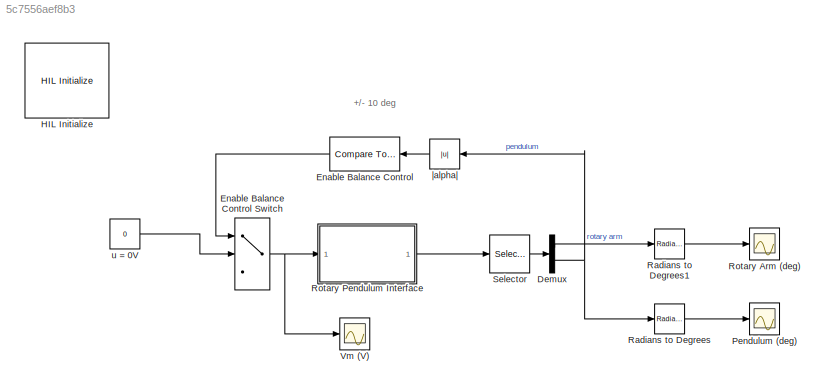
MODEL slx_5c7556aef8b3
KIND model
CONFIG AbsTol = auto
CONFIG EnableMultiTasking = on
CONFIG FixedStep = 0.002
CONFIG MaxStep = auto
CONFIG MinStep = auto
CONFIG RelTol = 1e-3
CONFIG SampleTimeConstraint = Unconstrained
CONFIG Solver = ode1
CONFIG SolverName = ode1
CONFIG StartTime = 0.0
CONFIG StopTime = inf
BLOCK [Demux] Demux
  Outputs = 2
  Ports = [1, 2]
BLOCK [Reference] Enable Balance Control  REF=simulink/Logic and Bit
Operations/Compare
To Constant
  Ports = [1, 1]
  SourceBlock = simulink/Logic and Bit\nOperations/Compare\nTo Constant
  SourceProductBaseCode = SL
  SourceType = Compare To Constant
BLOCK [MultiPortSwitch] Enable Balance Control Switch
  DataPortOrder = Zero-based contiguous
  InputSameDT = off
  Inputs = 2
  Ports = [3, 1]
  SaturateOnIntegerOverflow = off
  zeroidx = on
BLOCK [Reference] HIL Initialize  REF=quarc_library/Data Acquisition/Generic/Configuration/HIL Initialize
  AttributesFormatString = %<object_name> (%<board_type>-%<board_number>)
  Ports = []
  SourceBlock = quarc_library/Data Acquisition/Generic/Configuration/HIL Initialize
  SourceProductName = QUARC Targets
  SourceType = HIL Initialize
  UserDataPersistent = on
BLOCK [Scope] Pendulum (deg)
  Floating = off
  NumInputPorts = 1
  Ports = [1]
  ScopeSpecificationString = Simulink.scopes.TimeScopeBlockCfg('CurrentConfiguration', extmgr.ConfigurationSet(extmgr.Configuration('Core','General UI',true),extmgr.Configuration('Core','Source UI',true),extmgr.Configuration('Sources','WiredSimulink',true,'DataLoggingVariableName','ScopeData1'),extmgr.Configuration('Visuals','Time Domain',true,'SerializedDisplays',{struct('MinYLimReal','-195.77637','MaxYLimReal','-38.0127','Y...<+1445ch>
BLOCK [Reference] Radians to Degrees  REF=simulink_extras/Transformations/Radians
to Degrees
  Ports = [1, 1]
  SourceBlock = simulink_extras/Transformations/Radians\nto Degrees
  SourceProductBaseCode = SL
  SourceType = RadiansToDegrees
BLOCK [Reference] Radians to Degrees1  REF=simulink_extras/Transformations/Radians
to Degrees
  Ports = [1, 1]
  SourceBlock = simulink_extras/Transformations/Radians\nto Degrees
  SourceProductBaseCode = SL
  SourceType = RadiansToDegrees
BLOCK [Scope] Rotary Arm (deg)
  Floating = off
  NumInputPorts = 1
  Ports = [1]
  ScopeSpecificationString = Simulink.scopes.TimeScopeBlockCfg('CurrentConfiguration', extmgr.ConfigurationSet(extmgr.Configuration('Core','General UI',true),extmgr.Configuration('Core','Source UI',true),extmgr.Configuration('Sources','WiredSimulink',true),extmgr.Configuration('Visuals','Time Domain',true,'SerializedDisplays',{struct('MinYLimReal','-0.19775','MaxYLimReal','0.02197','YLabelReal','','MinYLimMag','0.00000','MaxY...<+1392ch>
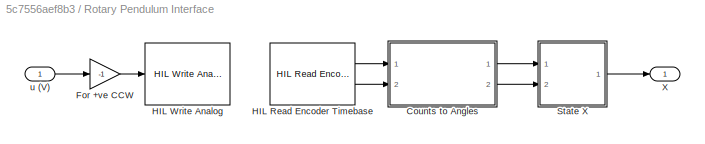
BLOCK [SubSystem] Rotary Pendulum Interface
  Ports = [1, 1]
  RequestExecContextInheritance = off
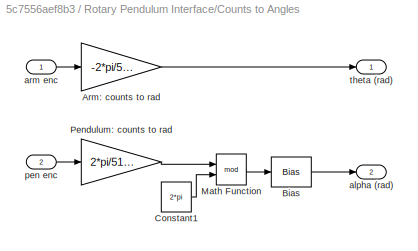
BLOCK [SubSystem] Rotary Pendulum Interface/Counts to Angles
  Ports = [2, 2]
  RequestExecContextInheritance = off
BLOCK [Gain] Rotary Pendulum Interface/Counts to Angles/Arm: counts to rad
  Gain = -2*pi/512/4
BLOCK [Bias] Rotary Pendulum Interface/Counts to Angles/Bias
  Bias = -pi
  SaturateOnIntegerOverflow = off
BLOCK [Constant] Rotary Pendulum Interface/Counts to Angles/Constant1
  Value = 2*pi
BLOCK [Math] Rotary Pendulum Interface/Counts to Angles/Math Function
  Operator = mod
  Ports = [2, 1]
  SignedPower = on
BLOCK [Gain] Rotary Pendulum Interface/Counts to Angles/Pendulum: counts to rad
  Gain = 2*pi/512/4
BLOCK [Outport] Rotary Pendulum Interface/Counts to Angles/alpha (rad)
  Port = 2
  VectorParamsAs1DForOutWhenUnconnected = off
BLOCK [Inport] Rotary Pendulum Interface/Counts to Angles/arm enc
BLOCK [Inport] Rotary Pendulum Interface/Counts to Angles/pen enc
  Port = 2
BLOCK [Outport] Rotary Pendulum Interface/Counts to Angles/theta (rad)
  VectorParamsAs1DForOutWhenUnconnected = off
BLOCK [Gain] Rotary Pendulum Interface/For +ve CCW
  Gain = -1
BLOCK [Reference] Rotary Pendulum Interface/HIL Read Encoder Timebase  REF=quarc_library/Data Acquisition/Generic/Timebases/HIL Read Encoder
Timebase
  AttributesFormatString = (%<object_name>)
  Ports = [0, 2]
  SourceBlock = quarc_library/Data Acquisition/Generic/Timebases/HIL Read Encoder\nTimebase
  SourceProductName = QUARC Targets
  SourceType = HIL Read Encoder Timebase
  UserDataPersistent = on
BLOCK [Reference] Rotary Pendulum Interface/HIL Write Analog  REF=quarc_library/Data Acquisition/Generic/Immediate I//O/HIL Write Analog
  AttributesFormatString = (%<object_name>)
  Ports = [1]
  SourceBlock = quarc_library/Data Acquisition/Generic/Immediate I//O/HIL Write Analog
  SourceProductName = QUARC Targets
  SourceType = HIL Write Analog
  UserDataPersistent = on
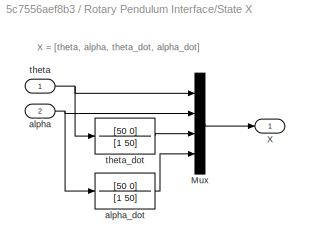
BLOCK [SubSystem] Rotary Pendulum Interface/State X
  Ports = [2, 1]
  RequestExecContextInheritance = off
BLOCK [Mux] Rotary Pendulum Interface/State X/Mux
  DisplayOption = bar
  Ports = [4, 1]
BLOCK [Outport] Rotary Pendulum Interface/State X/X
  VectorParamsAs1DForOutWhenUnconnected = off
BLOCK [Inport] Rotary Pendulum Interface/State X/alpha
  Port = 2
BLOCK [TransferFcn] Rotary Pendulum Interface/State X/alpha_dot
  Denominator = [1 50]
  Numerator = [50 0]
BLOCK [Inport] Rotary Pendulum Interface/State X/theta
BLOCK [TransferFcn] Rotary Pendulum Interface/State X/theta_dot
  Denominator = [1 50]
  Numerator = [50 0]
BLOCK [Outport] Rotary Pendulum Interface/X
  VectorParamsAs1DForOutWhenUnconnected = off
BLOCK [Inport] Rotary Pendulum Interface/u (V)
BLOCK [Selector] Selector
  IndexOptions = Index vector (dialog)
  Indices = [1 2]
  InputPortWidth = 4
  OutputSizes = 1
  Ports = [1, 1]
BLOCK [Scope] Vm (V)
  Floating = off
  NumInputPorts = 1
  Ports = [1]
  ScopeSpecificationString = Simulink.scopes.TimeScopeBlockCfg('CurrentConfiguration', extmgr.ConfigurationSet(extmgr.Configuration('Core','General UI',true),extmgr.Configuration('Core','Source UI',true),extmgr.Configuration('Sources','WiredSimulink',true,'DataLoggingVariableName','ScopeData2'),extmgr.Configuration('Visuals','Time Domain',true,'SerializedDisplays',{struct('MinYLimReal','-1.00000','MaxYLimReal','1.00000','YLab...<+1440ch>
BLOCK [Constant] u = 0V
  Value = 0
BLOCK [Abs] |alpha|
  SaturateOnIntegerOverflow = off
ANNOTATION (root): +/- 10 deg
ANNOTATION Rotary Pendulum Interface/State X: X = [theta, alpha, theta_dot, alpha_dot]
LINE Demux:1 -> Radians to Degrees1:1
NET Demux:2 -> Radians to Degrees:1, |alpha|:1
NET Enable Balance Control Switch:1 -> Rotary Pendulum Interface:1, Vm (V):1
LINE Enable Balance Control:1 -> Enable Balance Control Switch:1
LINE Radians to Degrees1:1 -> Rotary Arm (deg):1
LINE Radians to Degrees:1 -> Pendulum (deg):1
LINE Rotary Pendulum Interface/Counts to Angles/Arm: counts to rad:1 -> Rotary Pendulum Interface/Counts to Angles/theta (rad):1
LINE Rotary Pendulum Interface/Counts to Angles/Bias:1 -> Rotary Pendulum Interface/Counts to Angles/alpha (rad):1
LINE Rotary Pendulum Interface/Counts to Angles/Constant1:1 -> Rotary Pendulum Interface/Counts to Angles/Math Function:2
LINE Rotary Pendulum Interface/Counts to Angles/Math Function:1 -> Rotary Pendulum Interface/Counts to Angles/Bias:1
LINE Rotary Pendulum Interface/Counts to Angles/Pendulum: counts to rad:1 -> Rotary Pendulum Interface/Counts to Angles/Math Function:1
LINE Rotary Pendulum Interface/Counts to Angles/arm enc:1 -> Rotary Pendulum Interface/Counts to Angles/Arm: counts to rad:1
LINE Rotary Pendulum Interface/Counts to Angles/pen enc:1 -> Rotary Pendulum Interface/Counts to Angles/Pendulum: counts to rad:1
LINE Rotary Pendulum Interface/Counts to Angles:1 -> Rotary Pendulum Interface/State X:1
LINE Rotary Pendulum Interface/Counts to Angles:2 -> Rotary Pendulum Interface/State X:2
LINE Rotary Pendulum Interface/For +ve CCW:1 -> Rotary Pendulum Interface/HIL Write Analog:1
LINE Rotary Pendulum Interface/HIL Read Encoder Timebase:1 -> Rotary Pendulum Interface/Counts to Angles:1
LINE Rotary Pendulum Interface/HIL Read Encoder Timebase:2 -> Rotary Pendulum Interface/Counts to Angles:2
LINE Rotary Pendulum Interface/State X/Mux:1 -> Rotary Pendulum Interface/State X/X:1
NET Rotary Pendulum Interface/State X/alpha:1 -> Rotary Pendulum Interface/State X/Mux:2, Rotary Pendulum Interface/State X/alpha_dot:1
LINE Rotary Pendulum Interface/State X/alpha_dot:1 -> Rotary Pendulum Interface/State X/Mux:4
NET Rotary Pendulum Interface/State X/theta:1 -> Rotary Pendulum Interface/State X/Mux:1, Rotary Pendulum Interface/State X/theta_dot:1
LINE Rotary Pendulum Interface/State X/theta_dot:1 -> Rotary Pendulum Interface/State X/Mux:3
LINE Rotary Pendulum Interface/State X:1 -> Rotary Pendulum Interface/X:1
LINE Rotary Pendulum Interface/u (V):1 -> Rotary Pendulum Interface/For +ve CCW:1
LINE Rotary Pendulum Interface:1 -> Selector:1
LINE Selector:1 -> Demux:1
LINE u = 0V:1 -> Enable Balance Control Switch:2
LINE |alpha|:1 -> Enable Balance Control:1
note: NET lines group one-source signal fan-out (src -> all destinations, sorted); 1:1 wires keep LINE
